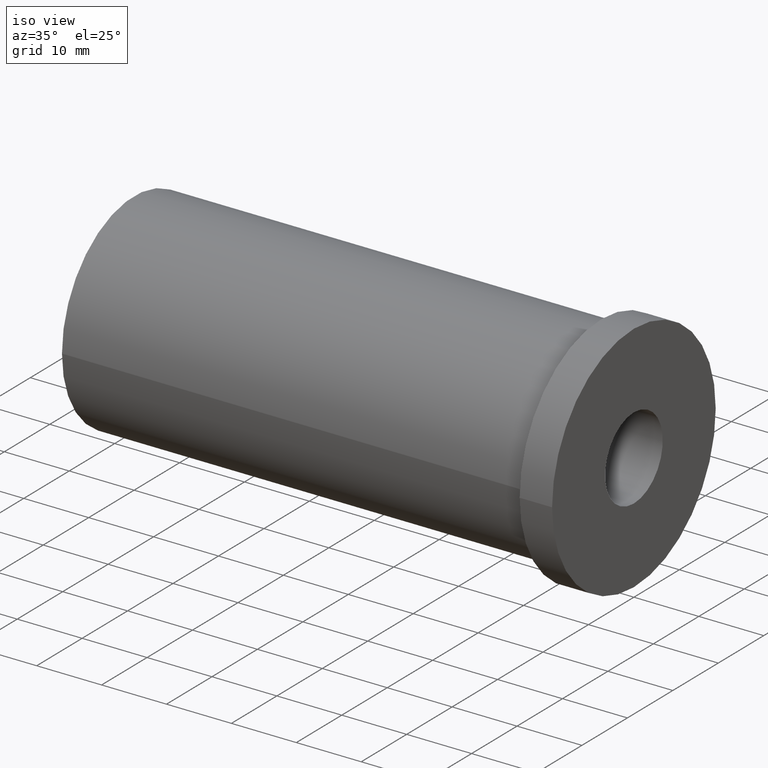
[diagram: clean part render]
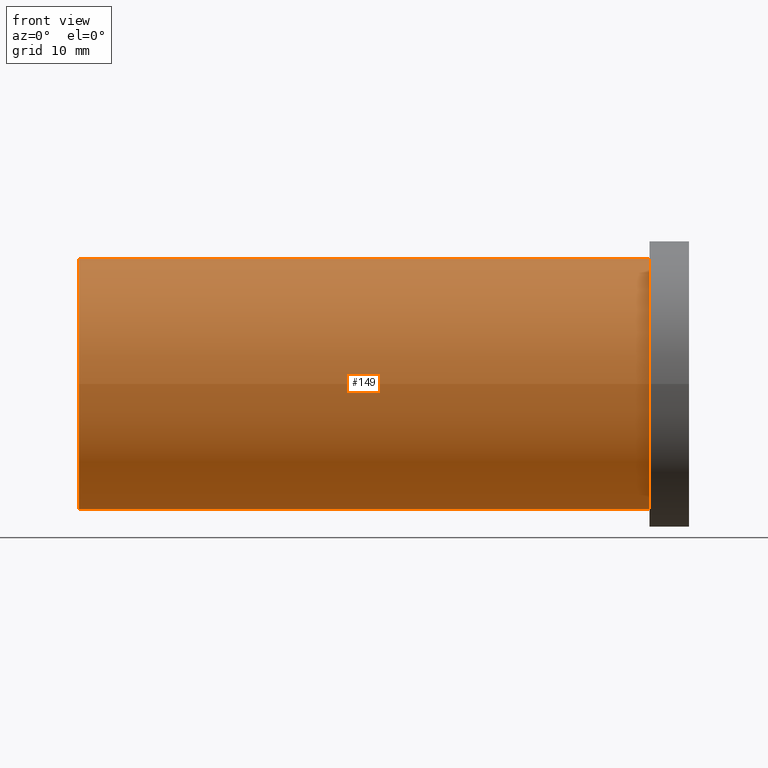
[diagram: tour spotlight — one face highlighted and labeled with its STEP entity id]
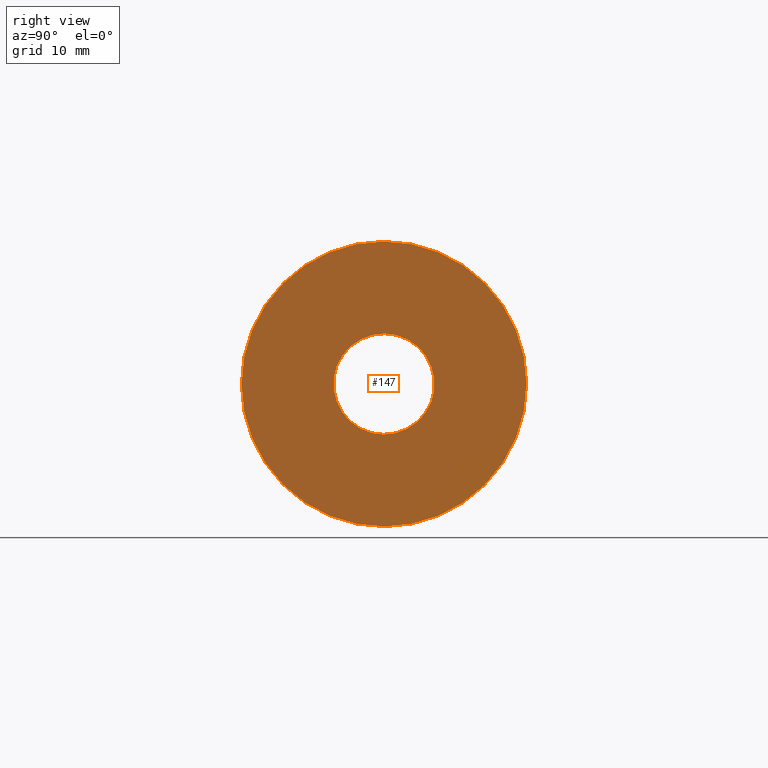
[diagram: tour spotlight — one face highlighted and labeled with its STEP entity id]
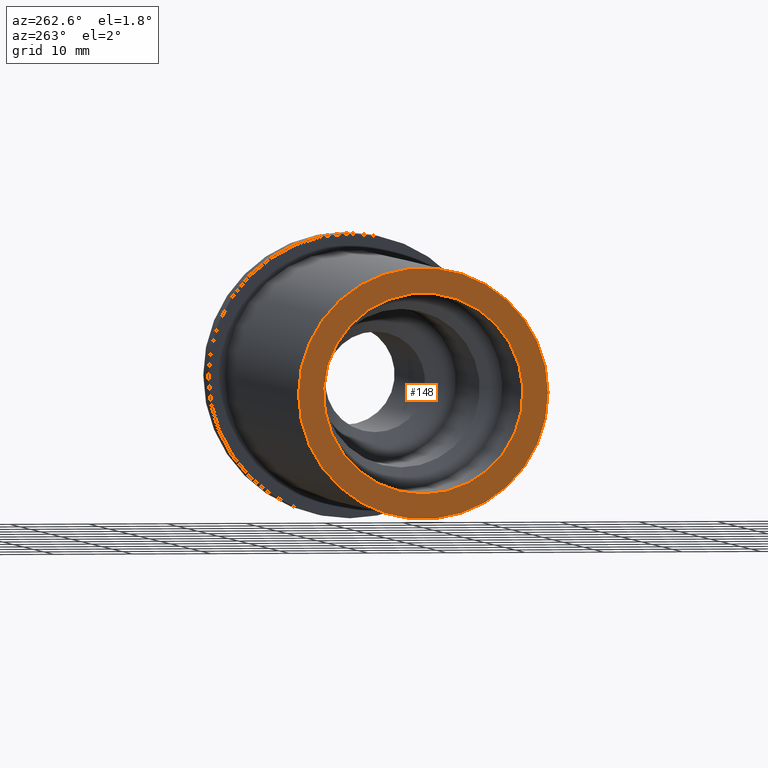
[diagram: tour spotlight — one face highlighted and labeled with its STEP entity id]
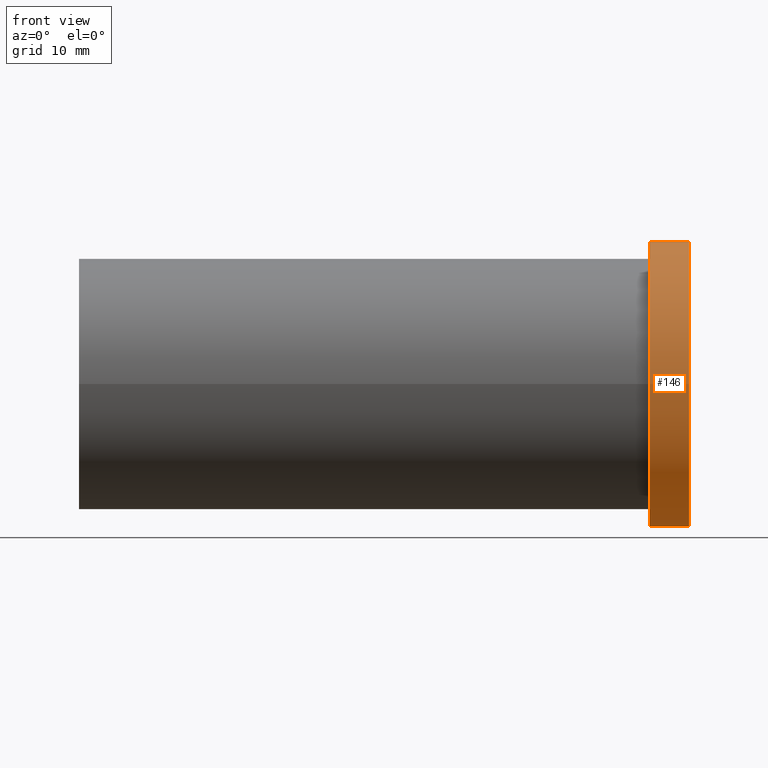
[diagram: tour spotlight — one face highlighted and labeled with its STEP entity id]
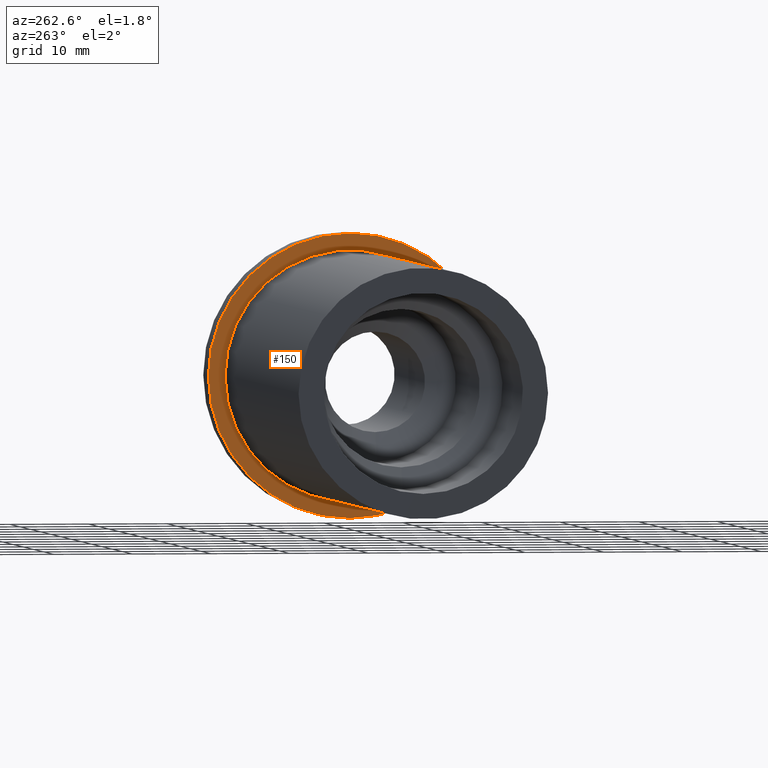
[diagram: tour spotlight — one face highlighted and labeled with its STEP entity id]
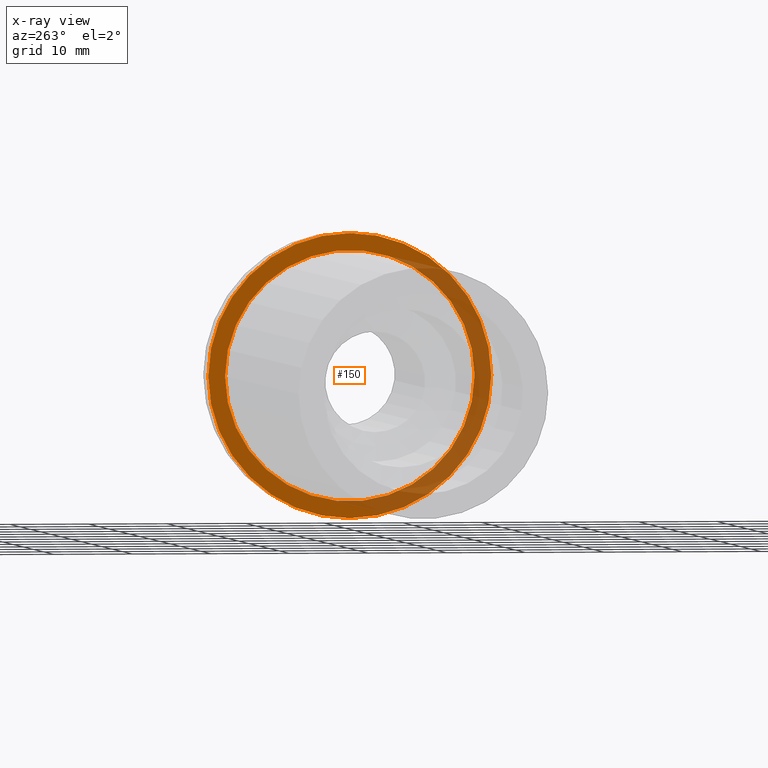
[diagram: x-ray of the same camera — body ghosted, this tour face saturated]
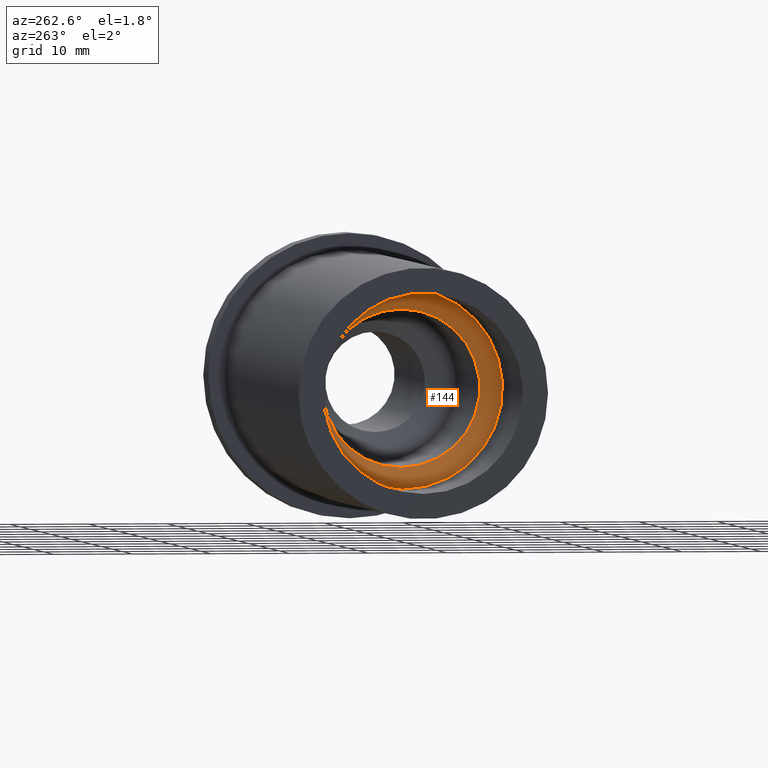
[diagram: tour spotlight — one face highlighted and labeled with its STEP entity id]
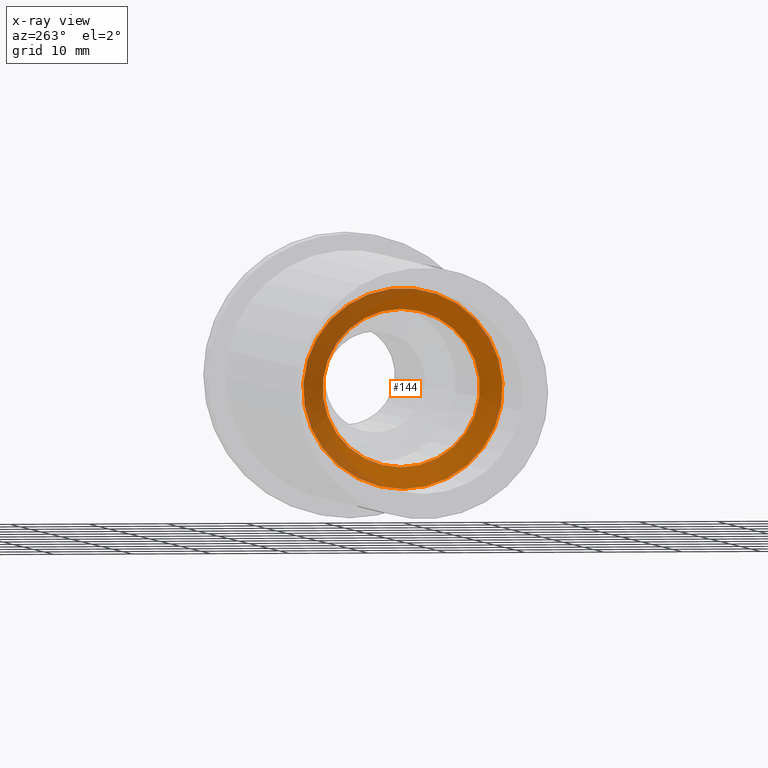
[diagram: x-ray of the same camera — body ghosted, this tour face saturated]
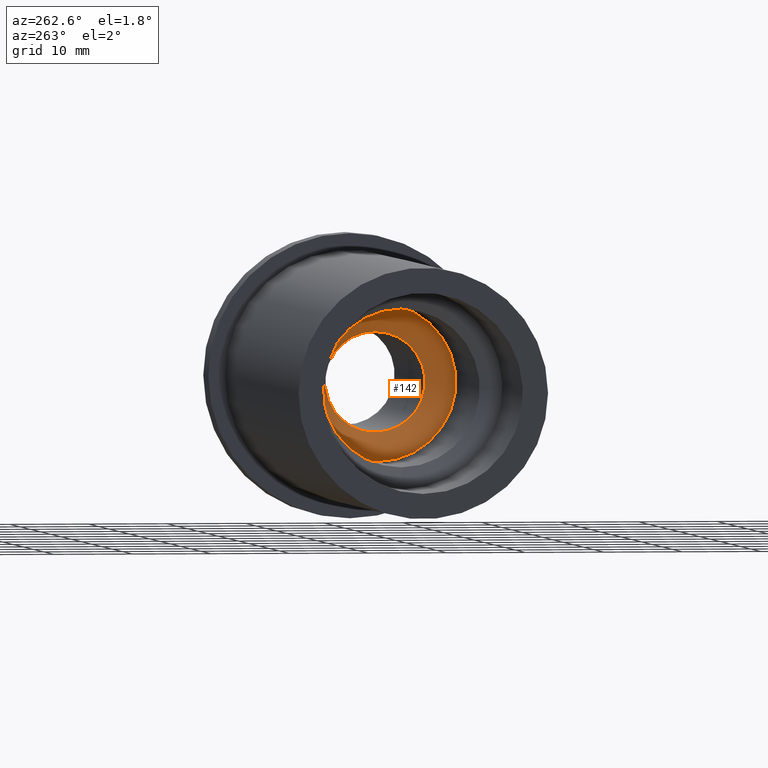
[diagram: tour spotlight — one face highlighted and labeled with its STEP entity id]
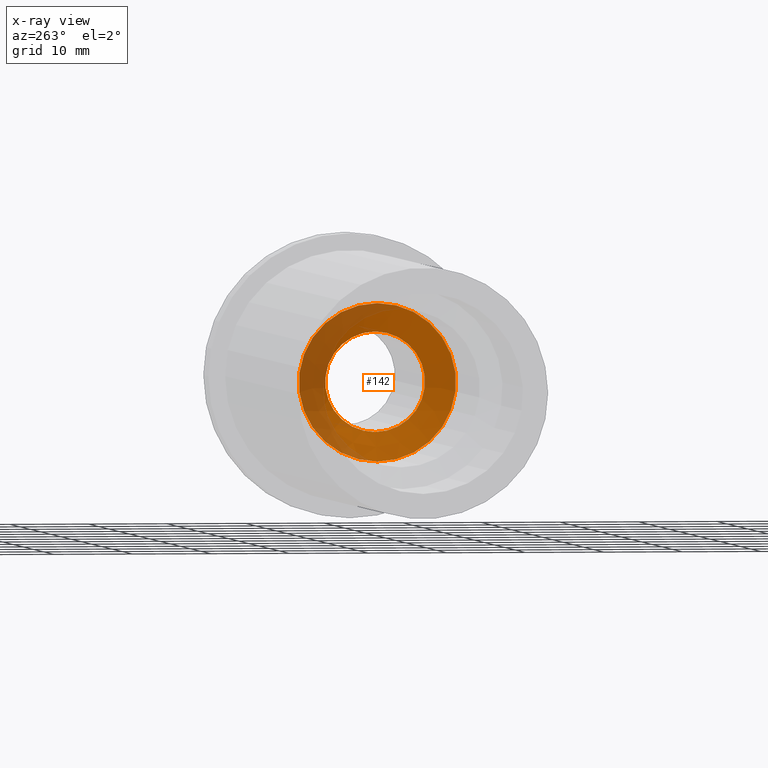
[diagram: x-ray of the same camera — body ghosted, this tour face saturated]
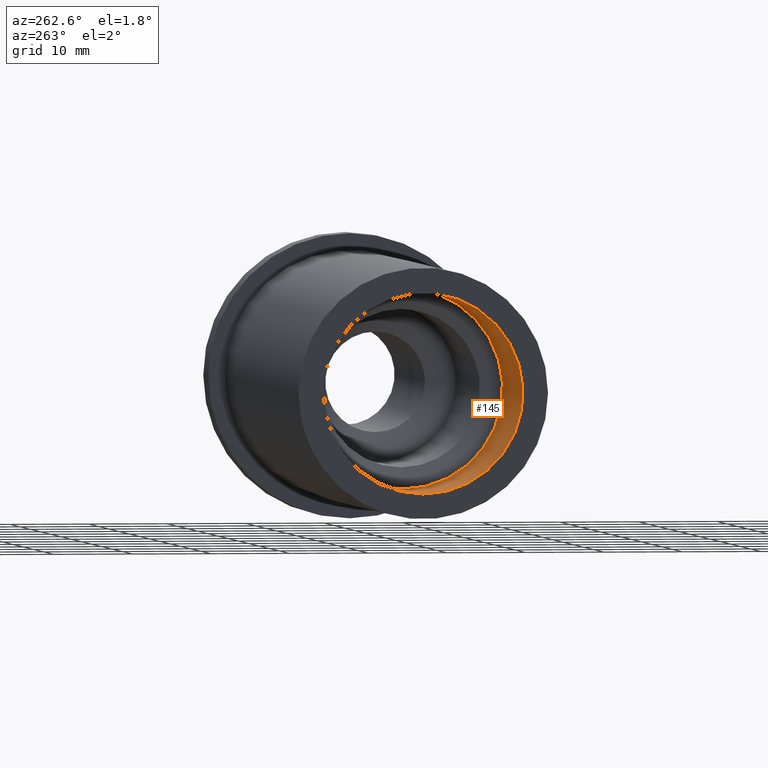
[diagram: tour spotlight — one face highlighted and labeled with its STEP entity id]
A machine part: a face-by-face anatomy tour. The part has 10 B-rep faces; the first image is the clean iso view, then the 8 largest visible faces are spotlighted one at a time (largest first), each with its STEP entity span.

Face 1 — front view, entity #149. In plain terms, the highlighted cylindrical surface (bore or boss wall) has radius 15.875 mm, axis along (1, 0, 0).
Definition (entity closure, byte-faithful):
#31=FACE_OUTER_BOUND('',#43,.T.);
#43=EDGE_LOOP('',(#130,#131,#132,#133));
#52=LINE('',#284,#59);
#59=VECTOR('',#243,15.8750000000001);
#69=CIRCLE('',#191,15.875);
#70=CIRCLE('',#193,15.8750000000001);
#80=VERTEX_POINT('',#279);
#81=VERTEX_POINT('',#282);
#97=EDGE_CURVE('',#80,#80,#69,.T.);
#98=EDGE_CURVE('',#81,#81,#70,.T.);
#99=EDGE_CURVE('',#81,#80,#52,.T.);
#130=ORIENTED_EDGE('',*,*,#98,.F.);
#131=ORIENTED_EDGE('',*,*,#99,.T.);
#132=ORIENTED_EDGE('',*,*,#97,.T.);
#133=ORIENTED_EDGE('',*,*,#99,.F.);
#140=CYLINDRICAL_SURFACE('',#192,15.8750000000001);
#149=ADVANCED_FACE('',(#31),#140,.T.);
#191=AXIS2_PLACEMENT_3D('',#280,#237,#238);
#192=AXIS2_PLACEMENT_3D('',#281,#239,#240);
#193=AXIS2_PLACEMENT_3D('',#283,#241,#242);
#237=DIRECTION('center_axis',(1.,0.,0.));
#238=DIRECTION('ref_axis',(0.,0.,-1.));
#239=DIRECTION('center_axis',(1.,0.,0.));
#240=DIRECTION('ref_axis',(0.,1.,0.));
#241=DIRECTION('center_axis',(1.,0.,0.));
#242=DIRECTION('ref_axis',(0.,0.,-1.));
#243=DIRECTION('',(-1.,0.,0.));
#279=CARTESIAN_POINT('',(-77.,-15.8750000000001,-1.94412679364643E-15));
#280=CARTESIAN_POINT('Origin',(-77.,0.,0.));
#281=CARTESIAN_POINT('Origin',(-41.,0.,0.));
#282=CARTESIAN_POINT('',(-5.,-15.8750000000001,-1.94412679364643E-15));
#283=CARTESIAN_POINT('Origin',(-5.,0.,0.));
#284=CARTESIAN_POINT('',(-41.,-15.8750000000001,-1.94412679364643E-15));

Face 2 — right view, entity #147. In plain terms, the highlighted planar face has unit normal (1, 0, 0).
Definition (entity closure, byte-faithful):
#15=FACE_BOUND('',#40,.T.);
#18=PLANE('',#189);
#29=FACE_OUTER_BOUND('',#39,.T.);
#39=EDGE_LOOP('',(#126));
#40=EDGE_LOOP('',(#127));
#60=CIRCLE('',#175,6.35);
#67=CIRCLE('',#187,18.);
#71=VERTEX_POINT('',#248);
#78=VERTEX_POINT('',#272);
#82=EDGE_CURVE('',#71,#71,#60,.T.);
#94=EDGE_CURVE('',#78,#78,#67,.T.);
#126=ORIENTED_EDGE('',*,*,#94,.T.);
#127=ORIENTED_EDGE('',*,*,#82,.T.);
#147=ADVANCED_FACE('',(#29,#15),#18,.T.);
#175=AXIS2_PLACEMENT_3D('',#249,#199,#200);
#187=AXIS2_PLACEMENT_3D('',#273,#228,#229);
#189=AXIS2_PLACEMENT_3D('',#277,#233,#234);
#199=DIRECTION('center_axis',(-1.,0.,0.));
#200=DIRECTION('ref_axis',(0.,0.,-1.));
#228=DIRECTION('center_axis',(1.,0.,0.));
#229=DIRECTION('ref_axis',(0.,0.,-1.));
#233=DIRECTION('center_axis',(1.,0.,0.));
#234=DIRECTION('ref_axis',(0.,0.,-1.));
#248=CARTESIAN_POINT('',(0.,-7.77650717458569E-16,6.35));
#249=CARTESIAN_POINT('Origin',(0.,0.,0.));
#272=CARTESIAN_POINT('',(5.55111512312578E-15,-18.,-2.20436423846524E-15));
#273=CARTESIAN_POINT('Origin',(5.55111512312578E-15,0.,0.));
#277=CARTESIAN_POINT('Origin',(1.24504562061398E-31,2.26081779560032E-14,
0.));

Face 3 — auxiliary view, entity #148. In plain terms, the highlighted planar face has unit normal (-1, 0, 0).
Definition (entity closure, byte-faithful):
#16=FACE_BOUND('',#42,.T.);
#19=PLANE('',#190);
#30=FACE_OUTER_BOUND('',#41,.T.);
#41=EDGE_LOOP('',(#128));
#42=EDGE_LOOP('',(#129));
#66=CIRCLE('',#185,12.688101);
#69=CIRCLE('',#191,15.875);
#77=VERTEX_POINT('',#268);
#80=VERTEX_POINT('',#279);
#92=EDGE_CURVE('',#77,#77,#66,.T.);
#97=EDGE_CURVE('',#80,#80,#69,.T.);
#128=ORIENTED_EDGE('',*,*,#97,.F.);
#129=ORIENTED_EDGE('',*,*,#92,.T.);
#148=ADVANCED_FACE('',(#30,#16),#19,.T.);
#185=AXIS2_PLACEMENT_3D('',#269,#223,#224);
#190=AXIS2_PLACEMENT_3D('',#278,#235,#236);
#191=AXIS2_PLACEMENT_3D('',#280,#237,#238);
#223=DIRECTION('center_axis',(1.,0.,0.));
#224=DIRECTION('ref_axis',(0.,0.,1.));
#235=DIRECTION('center_axis',(-1.,0.,0.));
#236=DIRECTION('ref_axis',(0.,0.,1.));
#237=DIRECTION('center_axis',(1.,0.,0.));
#238=DIRECTION('ref_axis',(0.,0.,-1.));
#268=CARTESIAN_POINT('',(-77.,-1.55384422769083E-15,-12.688101));
#269=CARTESIAN_POINT('Origin',(-77.,0.,0.));
#278=CARTESIAN_POINT('Origin',(-77.,15.875,0.));
#279=CARTESIAN_POINT('',(-77.,-15.8750000000001,-1.94412679364643E-15));
#280=CARTESIAN_POINT('Origin',(-77.,0.,0.));

Face 4 — front view, entity #146. In plain terms, the highlighted cylindrical surface (bore or boss wall) has radius 18 mm, axis along (1, 0, 0).
Definition (entity closure, byte-faithful):
#28=FACE_OUTER_BOUND('',#38,.T.);
#38=EDGE_LOOP('',(#122,#123,#124,#125));
#51=LINE('',#275,#58);
#58=VECTOR('',#230,18.);
#67=CIRCLE('',#187,18.);
#68=CIRCLE('',#188,18.);
#78=VERTEX_POINT('',#272);
#79=VERTEX_POINT('',#274);
#94=EDGE_CURVE('',#78,#78,#67,.T.);
#95=EDGE_CURVE('',#78,#79,#51,.T.);
#96=EDGE_CURVE('',#79,#79,#68,.T.);
#122=ORIENTED_EDGE('',*,*,#94,.F.);
#123=ORIENTED_EDGE('',*,*,#95,.T.);
#124=ORIENTED_EDGE('',*,*,#96,.T.);
#125=ORIENTED_EDGE('',*,*,#95,.F.);
#139=CYLINDRICAL_SURFACE('',#186,18.);
#146=ADVANCED_FACE('',(#28),#139,.T.);
#186=AXIS2_PLACEMENT_3D('',#271,#226,#227);
#187=AXIS2_PLACEMENT_3D('',#273,#228,#229);
#188=AXIS2_PLACEMENT_3D('',#276,#231,#232);
#226=DIRECTION('center_axis',(1.,0.,0.));
#227=DIRECTION('ref_axis',(0.,1.,0.));
#228=DIRECTION('center_axis',(1.,0.,0.));
#229=DIRECTION('ref_axis',(0.,0.,-1.));
#230=DIRECTION('',(-1.,0.,0.));
#231=DIRECTION('center_axis',(1.,0.,0.));
#232=DIRECTION('ref_axis',(0.,0.,-1.));
#271=CARTESIAN_POINT('Origin',(-2.49999999999999,0.,0.));
#272=CARTESIAN_POINT('',(5.55111512312578E-15,-18.,-2.20436423846524E-15));
#273=CARTESIAN_POINT('Origin',(5.55111512312578E-15,0.,0.));
#274=CARTESIAN_POINT('',(-4.99999999999999,-18.,-2.20436423846524E-15));
#275=CARTESIAN_POINT('',(-2.49999999999999,-18.,-2.20436423846524E-15));
#276=CARTESIAN_POINT('Origin',(-4.99999999999999,0.,0.));

Face 5 — auxiliary view, entity #150. An x-ray twin of the same camera follows (body ghosted, this face saturated) — the face is partly hidden behind the body. In plain terms, the highlighted planar face has unit normal (-1, 0, 0).
Definition (entity closure, byte-faithful):
#17=FACE_BOUND('',#45,.T.);
#20=PLANE('',#194);
#32=FACE_OUTER_BOUND('',#44,.T.);
#44=EDGE_LOOP('',(#134));
#45=EDGE_LOOP('',(#135));
#68=CIRCLE('',#188,18.);
#70=CIRCLE('',#193,15.8750000000001);
#79=VERTEX_POINT('',#274);
#81=VERTEX_POINT('',#282);
#96=EDGE_CURVE('',#79,#79,#68,.T.);
#98=EDGE_CURVE('',#81,#81,#70,.T.);
#134=ORIENTED_EDGE('',*,*,#96,.F.);
#135=ORIENTED_EDGE('',*,*,#98,.T.);
#150=ADVANCED_FACE('',(#32,#17),#20,.T.);
#188=AXIS2_PLACEMENT_3D('',#276,#231,#232);
#193=AXIS2_PLACEMENT_3D('',#283,#241,#242);
#194=AXIS2_PLACEMENT_3D('',#285,#244,#245);
#231=DIRECTION('center_axis',(1.,0.,0.));
#232=DIRECTION('ref_axis',(0.,0.,-1.));
#241=DIRECTION('center_axis',(1.,0.,0.));
#242=DIRECTION('ref_axis',(0.,0.,-1.));
#244=DIRECTION('center_axis',(-1.,0.,0.));
#245=DIRECTION('ref_axis',(0.,0.,1.));
#274=CARTESIAN_POINT('',(-4.99999999999999,-18.,-2.20436423846524E-15));
#276=CARTESIAN_POINT('Origin',(-4.99999999999999,0.,0.));
#282=CARTESIAN_POINT('',(-5.,-15.8750000000001,-1.94412679364643E-15));
#283=CARTESIAN_POINT('Origin',(-5.,0.,0.));
#285=CARTESIAN_POINT('Origin',(-4.99999999999999,18.,0.));

Face 6 — auxiliary view, entity #144. An x-ray twin of the same camera follows (body ghosted, this face saturated) — the face is partly hidden behind the body. In plain terms, the highlighted conical surface has half-angle 59 deg.
Definition (entity closure, byte-faithful):
#22=CONICAL_SURFACE('',#182,6.3440505,1.02974425867665);
#26=FACE_OUTER_BOUND('',#36,.T.);
#36=EDGE_LOOP('',(#114,#115,#116,#117));
#49=LINE('',#266,#56);
#56=VECTOR('',#220,6.3440505);
#64=CIRCLE('',#181,10.);
#65=CIRCLE('',#183,12.688101);
#75=VERTEX_POINT('',#260);
#76=VERTEX_POINT('',#264);
#88=EDGE_CURVE('',#75,#75,#64,.T.);
#90=EDGE_CURVE('',#76,#76,#65,.T.);
#91=EDGE_CURVE('',#76,#75,#49,.T.);
#114=ORIENTED_EDGE('',*,*,#90,.T.);
#115=ORIENTED_EDGE('',*,*,#91,.T.);
#116=ORIENTED_EDGE('',*,*,#88,.T.);
#117=ORIENTED_EDGE('',*,*,#91,.F.);
#144=ADVANCED_FACE('',(#26),#22,.F.);
#181=AXIS2_PLACEMENT_3D('',#261,#213,#214);
#182=AXIS2_PLACEMENT_3D('',#263,#216,#217);
#183=AXIS2_PLACEMENT_3D('',#265,#218,#219);
#213=DIRECTION('center_axis',(1.,0.,0.));
#214=DIRECTION('ref_axis',(0.,0.,1.));
#216=DIRECTION('center_axis',(-1.,0.,0.));
#217=DIRECTION('ref_axis',(0.,0.,1.));
#218=DIRECTION('center_axis',(-1.,0.,0.));
#219=DIRECTION('ref_axis',(0.,0.,1.));
#220=DIRECTION('',(0.515038074910054,1.04972719113862E-16,0.857167300702112));
#260=CARTESIAN_POINT('',(-55.3848259691314,1.22464679914735E-15,-10.));
#261=CARTESIAN_POINT('Origin',(-55.3848259691314,0.,0.));
#263=CARTESIAN_POINT('Origin',(-53.1881098894279,0.,0.));
#264=CARTESIAN_POINT('',(-57.,-1.55384422769083E-15,-12.688101));
#265=CARTESIAN_POINT('Origin',(-57.,0.,0.));
#266=CARTESIAN_POINT('',(-53.1881098894279,-7.76922113845417E-16,-6.3440505));

Face 7 — auxiliary view, entity #142. An x-ray twin of the same camera follows (body ghosted, this face saturated) — the face is partly hidden behind the body. In plain terms, the highlighted conical surface has half-angle 59 deg.
Definition (entity closure, byte-faithful):
#21=CONICAL_SURFACE('',#178,5.,1.02974425867665);
#24=FACE_OUTER_BOUND('',#34,.T.);
#34=EDGE_LOOP('',(#105,#106,#107,#108,#109));
#47=LINE('',#258,#54);
#54=VECTOR('',#210,5.);
#61=CIRCLE('',#176,6.35);
#62=CIRCLE('',#177,6.35);
#63=CIRCLE('',#179,10.);
#72=VERTEX_POINT('',#250);
#73=VERTEX_POINT('',#252);
#74=VERTEX_POINT('',#256);
#84=EDGE_CURVE('',#73,#72,#61,.T.);
#85=EDGE_CURVE('',#72,#73,#62,.T.);
#86=EDGE_CURVE('',#74,#74,#63,.T.);
#87=EDGE_CURVE('',#74,#73,#47,.T.);
#105=ORIENTED_EDGE('',*,*,#86,.T.);
#106=ORIENTED_EDGE('',*,*,#87,.T.);
#107=ORIENTED_EDGE('',*,*,#84,.T.);
#108=ORIENTED_EDGE('',*,*,#85,.T.);
#109=ORIENTED_EDGE('',*,*,#87,.F.);
#142=ADVANCED_FACE('',(#24),#21,.F.);
#176=AXIS2_PLACEMENT_3D('',#253,#202,#203);
#177=AXIS2_PLACEMENT_3D('',#254,#204,#205);
#178=AXIS2_PLACEMENT_3D('',#255,#206,#207);
#179=AXIS2_PLACEMENT_3D('',#257,#208,#209);
#202=DIRECTION('center_axis',(1.,0.,0.));
#203=DIRECTION('ref_axis',(0.,0.,-1.));
#204=DIRECTION('center_axis',(1.,0.,0.));
#205=DIRECTION('ref_axis',(0.,0.,-1.));
#206=DIRECTION('center_axis',(-1.,0.,0.));
#207=DIRECTION('ref_axis',(0.,0.,1.));
#208=DIRECTION('center_axis',(-1.,0.,0.));
#209=DIRECTION('ref_axis',(0.,0.,1.));
#210=DIRECTION('',(0.515038074910054,1.04972719113862E-16,0.857167300702112));
#250=CARTESIAN_POINT('',(-29.8068587405494,-7.77650717458569E-16,6.35));
#252=CARTESIAN_POINT('',(-29.8068587405494,-7.77650717458569E-16,-6.35));
#253=CARTESIAN_POINT('Origin',(-29.8068587405494,0.,0.));
#254=CARTESIAN_POINT('Origin',(-29.8068587405494,0.,0.));
#255=CARTESIAN_POINT('Origin',(-28.9956969048622,0.,0.));
#256=CARTESIAN_POINT('',(-32.,-1.22464679914735E-15,-10.));
#257=CARTESIAN_POINT('Origin',(-32.,0.,0.));
#258=CARTESIAN_POINT('',(-28.9956969048622,-6.12323399573677E-16,-5.));

Face 8 — auxiliary view, entity #145. In plain terms, the highlighted cylindrical surface (bore or boss wall) has radius 12.6881 mm, axis along (-1, 0, 0).
Definition (entity closure, byte-faithful):
#27=FACE_OUTER_BOUND('',#37,.T.);
#37=EDGE_LOOP('',(#118,#119,#120,#121));
#50=LINE('',#270,#57);
#57=VECTOR('',#225,12.688101);
#65=CIRCLE('',#183,12.688101);
#66=CIRCLE('',#185,12.688101);
#76=VERTEX_POINT('',#264);
#77=VERTEX_POINT('',#268);
#90=EDGE_CURVE('',#76,#76,#65,.T.);
#92=EDGE_CURVE('',#77,#77,#66,.T.);
#93=EDGE_CURVE('',#77,#76,#50,.T.);
#118=ORIENTED_EDGE('',*,*,#92,.F.);
#119=ORIENTED_EDGE('',*,*,#93,.T.);
#120=ORIENTED_EDGE('',*,*,#90,.F.);
#121=ORIENTED_EDGE('',*,*,#93,.F.);
#138=CYLINDRICAL_SURFACE('',#184,12.688101);
#145=ADVANCED_FACE('',(#27),#138,.F.);
#183=AXIS2_PLACEMENT_3D('',#265,#218,#219);
#184=AXIS2_PLACEMENT_3D('',#267,#221,#222);
#185=AXIS2_PLACEMENT_3D('',#269,#223,#224);
#218=DIRECTION('center_axis',(-1.,0.,0.));
#219=DIRECTION('ref_axis',(0.,0.,1.));
#221=DIRECTION('center_axis',(-1.,0.,0.));
#222=DIRECTION('ref_axis',(0.,0.,1.));
#223=DIRECTION('center_axis',(1.,0.,0.));
#224=DIRECTION('ref_axis',(0.,0.,1.));
#225=DIRECTION('',(1.,0.,0.));
#264=CARTESIAN_POINT('',(-57.,-1.55384422769083E-15,-12.688101));
#265=CARTESIAN_POINT('Origin',(-57.,0.,0.));
#267=CARTESIAN_POINT('Origin',(-67.,0.,0.));
#268=CARTESIAN_POINT('',(-77.,-1.55384422769083E-15,-12.688101));
#269=CARTESIAN_POINT('Origin',(-77.,0.,0.));
#270=CARTESIAN_POINT('',(-67.,-1.55384422769083E-15,-12.688101));